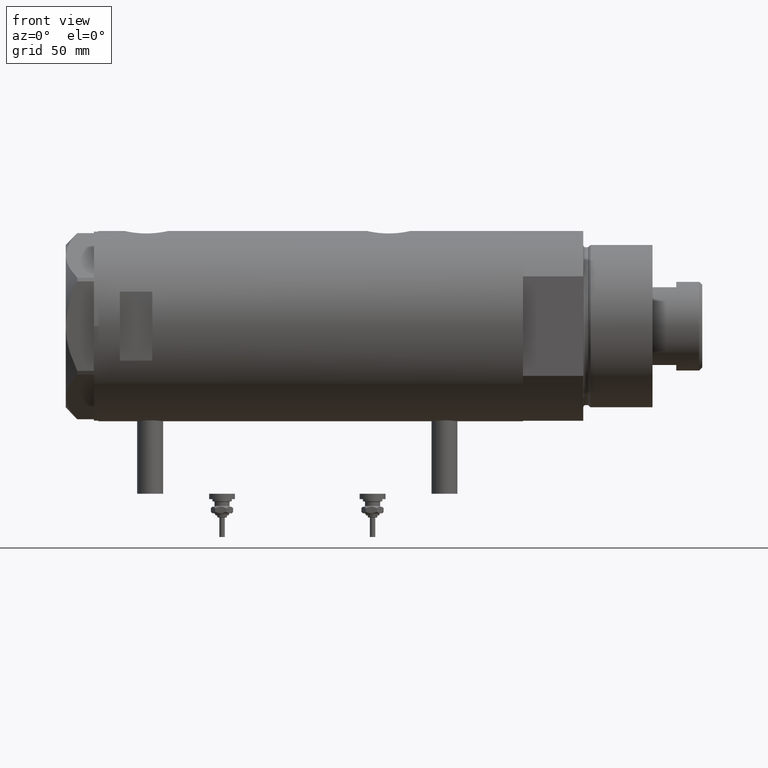
[diagram: clean part render]
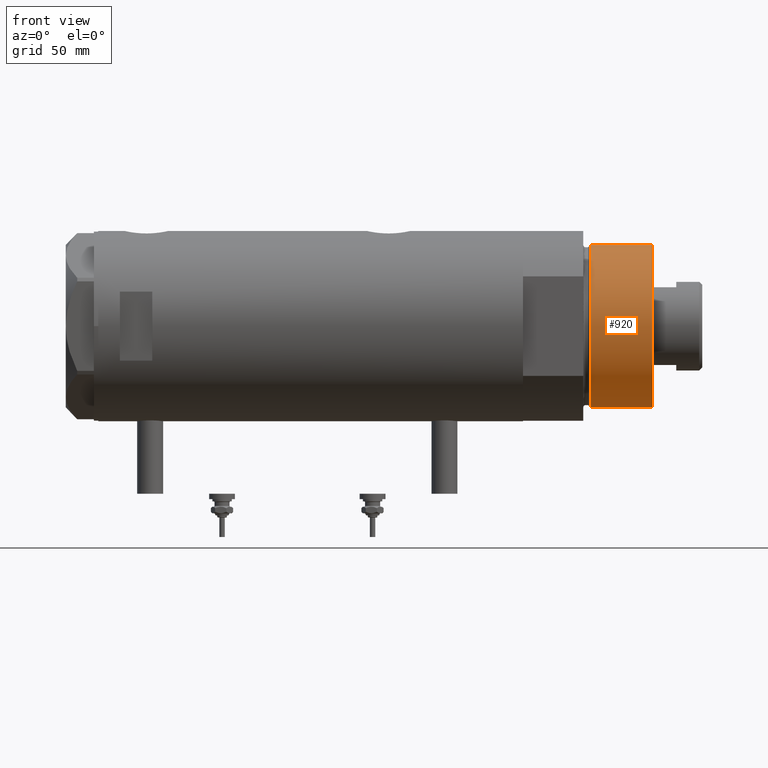
[diagram: same view with one face highlighted and labeled with its STEP entity id]
A machine part, front view. The second image highlights one B-rep face of the part: STEP entity #920.
In plain terms, the highlighted cylindrical surface (partial cylindrical patch) has radius 37.5 mm, axis along (-1, -0, 0).
Its self-contained STEP definition (entity closure, byte-faithful):
#1 = CIRCLE ( 'NONE', #3869, 37.50000000000000711 ) ;
#259 = CARTESIAN_POINT ( 'NONE',  ( 37.50000000000000711, 4.592425496802575156E-15, 59.89999999999999147 ) ) ;
#289 = ORIENTED_EDGE ( 'NONE', *, *, #1496, .T. ) ;
#350 = DIRECTION ( 'NONE',  ( -0.000000000000000000, -0.000000000000000000, 1.000000000000000000 ) ) ;
#474 = DIRECTION ( 'NONE',  ( 1.000000000000000000, 0.000000000000000000, 0.000000000000000000 ) ) ;
#526 = LINE ( 'NONE', #2743, #4365 ) ;
#920 = ADVANCED_FACE ( 'NONE', ( #2780 ), #4644, .T. ) ;
#1054 = CARTESIAN_POINT ( 'NONE',  ( -37.50000000000000711, 0.000000000000000000, 31.27384048104054415 ) ) ;
#1368 = CARTESIAN_POINT ( 'NONE',  ( -37.50000000000000711, 0.000000000000000000, 59.89999999999999147 ) ) ;
#1491 = CIRCLE ( 'NONE', #4766, 37.50000000000000711 ) ;
#1496 = EDGE_CURVE ( 'NONE', #1996, #5921, #4846, .T. ) ;
#1827 = VERTEX_POINT ( 'NONE', #259 ) ;
#1861 = EDGE_CURVE ( 'NONE', #5921, #4701, #1, .T. ) ;
#1932 = EDGE_CURVE ( 'NONE', #1827, #4701, #526, .T. ) ;
#1996 = VERTEX_POINT ( 'NONE', #1368 ) ;
#2137 = ORIENTED_EDGE ( 'NONE', *, *, #4232, .F. ) ;
#2382 = EDGE_LOOP ( 'NONE', ( #4341, #2137, #289, #2578 ) ) ;
#2445 = VECTOR ( 'NONE', #4916, 1000.000000000000000 ) ;
#2578 = ORIENTED_EDGE ( 'NONE', *, *, #1861, .T. ) ;
#2592 = DIRECTION ( 'NONE',  ( 1.000000000000000000, 0.000000000000000000, 0.000000000000000000 ) ) ;
#2743 = CARTESIAN_POINT ( 'NONE',  ( 37.50000000000000711, 4.592425496802575156E-15, 59.89999999999999147 ) ) ;
#2780 = FACE_OUTER_BOUND ( 'NONE', #2382, .T. ) ;
#3350 = CARTESIAN_POINT ( 'NONE',  ( 0.000000000000000000, 0.000000000000000000, 59.89999999999999147 ) ) ;
#3520 = CARTESIAN_POINT ( 'NONE',  ( 0.000000000000000000, 0.000000000000000000, 31.27384048104054415 ) ) ;
#3710 = CARTESIAN_POINT ( 'NONE',  ( 0.000000000000000000, 0.000000000000000000, 59.89999999999999147 ) ) ;
#3869 = AXIS2_PLACEMENT_3D ( 'NONE', #3520, #350, #2592 ) ;
#3967 = CARTESIAN_POINT ( 'NONE',  ( -37.50000000000000711, 0.000000000000000000, 59.89999999999999147 ) ) ;
#4232 = EDGE_CURVE ( 'NONE', #1996, #1827, #1491, .T. ) ;
#4341 = ORIENTED_EDGE ( 'NONE', *, *, #1932, .F. ) ;
#4365 = VECTOR ( 'NONE', #4580, 1000.000000000000000 ) ;
#4543 = CARTESIAN_POINT ( 'NONE',  ( 37.50000000000000711, 4.592425496802575156E-15, 31.27384048104054415 ) ) ;
#4580 = DIRECTION ( 'NONE',  ( -0.000000000000000000, -0.000000000000000000, -1.000000000000000000 ) ) ;
#4627 = DIRECTION ( 'NONE',  ( 0.000000000000000000, 0.000000000000000000, 1.000000000000000000 ) ) ;
#4644 = CYLINDRICAL_SURFACE ( 'NONE', #5448, 37.50000000000000711 ) ;
#4701 = VERTEX_POINT ( 'NONE', #4543 ) ;
#4766 = AXIS2_PLACEMENT_3D ( 'NONE', #3350, #4627, #474 ) ;
#4846 = LINE ( 'NONE', #3967, #2445 ) ;
#4916 = DIRECTION ( 'NONE',  ( -0.000000000000000000, -0.000000000000000000, -1.000000000000000000 ) ) ;
#5025 = DIRECTION ( 'NONE',  ( -1.000000000000000000, 0.000000000000000000, 0.000000000000000000 ) ) ;
#5117 = DIRECTION ( 'NONE',  ( -0.000000000000000000, -0.000000000000000000, -1.000000000000000000 ) ) ;
#5448 = AXIS2_PLACEMENT_3D ( 'NONE', #3710, #5117, #5025 ) ;
#5921 = VERTEX_POINT ( 'NONE', #1054 ) ;